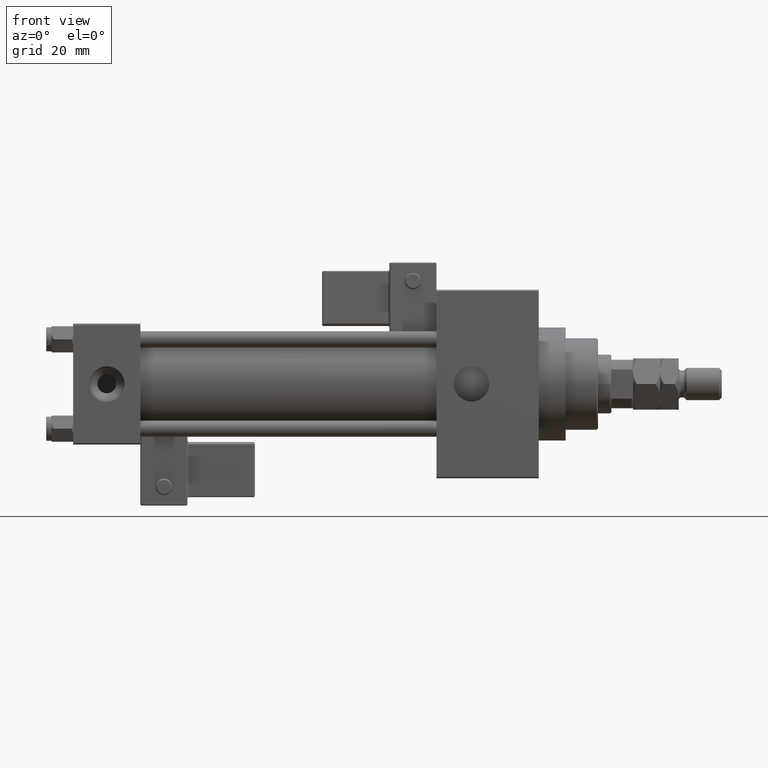
[diagram: clean part render]
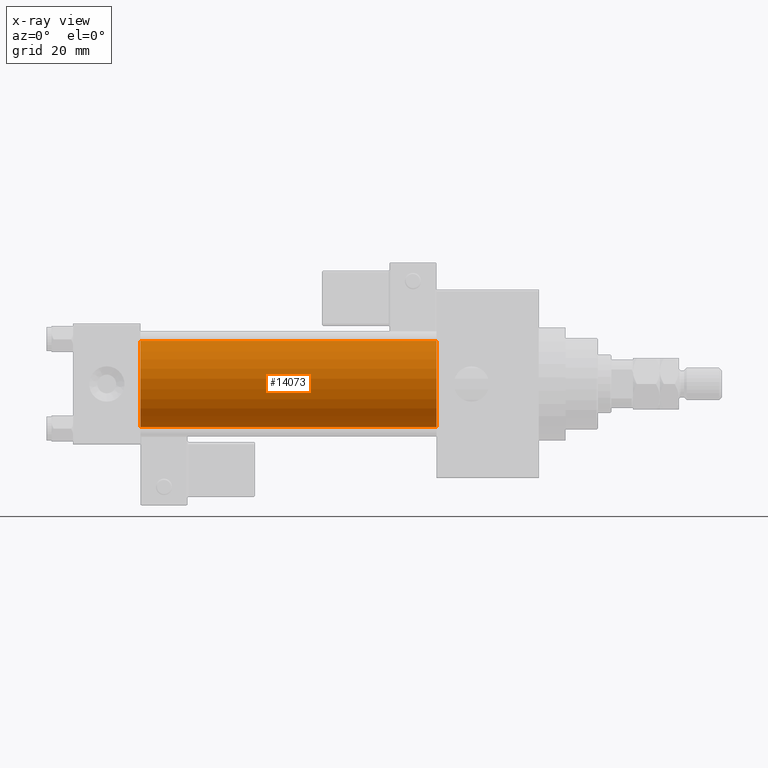
[diagram: x-ray — body ghosted, one internal face saturated and labeled with its STEP entity id]
A machine part, front view, then the same camera in x-ray: the body is ghosted and one INTERNAL B-rep face — a face not visible from any outside direction — is saturated and labeled: STEP entity #14073.
In plain terms, the highlighted cylindrical surface (partial cylindrical patch) has radius 16 mm, axis along (-1, -0, -0).
Its self-contained STEP definition (entity closure, byte-faithful):
#1417 = DIRECTION ( 'NONE',  ( 1.000000000000000000, 0.000000000000000000, 0.000000000000000000 ) ) ;
#1690 = CARTESIAN_POINT ( 'NONE',  ( 135.0000000000000000, -2.602085213965210642E-15, 0.000000000000000000 ) ) ;
#3012 = DIRECTION ( 'NONE',  ( 0.000000000000000000, 0.000000000000000000, 1.000000000000000000 ) ) ;
#3289 = DIRECTION ( 'NONE',  ( -1.000000000000000000, -0.000000000000000000, -0.000000000000000000 ) ) ;
#3478 = VERTEX_POINT ( 'NONE', #30323 ) ;
#4002 = EDGE_LOOP ( 'NONE', ( #31457, #5190, #52529, #21049 ) ) ;
#4261 = EDGE_CURVE ( 'NONE', #44328, #3478, #28925, .T. ) ;
#5190 = ORIENTED_EDGE ( 'NONE', *, *, #19760, .T. ) ;
#6471 = CIRCLE ( 'NONE', #11613, 16.00000000000000000 ) ;
#11319 = CARTESIAN_POINT ( 'NONE',  ( 135.0000000000000000, -2.602085213965210642E-15, 0.000000000000000000 ) ) ;
#11522 = CARTESIAN_POINT ( 'NONE',  ( 135.0000000000000000, -6.426503353294456087E-16, -16.00000000000000000 ) ) ;
#11613 = AXIS2_PLACEMENT_3D ( 'NONE', #46718, #18325, #23417 ) ;
#14073 = ADVANCED_FACE ( 'NONE', ( #19598 ), #31650, .F. ) ;
#15522 = DIRECTION ( 'NONE',  ( -1.000000000000000000, -0.000000000000000000, -0.000000000000000000 ) ) ;
#18325 = DIRECTION ( 'NONE',  ( 1.000000000000000000, 0.000000000000000000, 0.000000000000000000 ) ) ;
#19512 = AXIS2_PLACEMENT_3D ( 'NONE', #1690, #1417, #30331 ) ;
#19598 = FACE_OUTER_BOUND ( 'NONE', #4002, .T. ) ;
#19760 = EDGE_CURVE ( 'NONE', #3478, #51659, #19792, .T. ) ;
#19792 = LINE ( 'NONE', #11522, #25268 ) ;
#21049 = ORIENTED_EDGE ( 'NONE', *, *, #25130, .F. ) ;
#21655 = CARTESIAN_POINT ( 'NONE',  ( 135.0000000000000000, -2.602085213965210642E-15, 16.00000000000000000 ) ) ;
#23417 = DIRECTION ( 'NONE',  ( 0.000000000000000000, 0.000000000000000000, -1.000000000000000000 ) ) ;
#25130 = EDGE_CURVE ( 'NONE', #44328, #40762, #42538, .T. ) ;
#25268 = VECTOR ( 'NONE', #15522, 1000.000000000000000 ) ;
#25873 = CARTESIAN_POINT ( 'NONE',  ( 25.00000000000000000, -2.602085213965210642E-15, 16.00000000000000000 ) ) ;
#27612 = AXIS2_PLACEMENT_3D ( 'NONE', #11319, #3289, #3012 ) ;
#28925 = CIRCLE ( 'NONE', #19512, 16.00000000000000000 ) ;
#30323 = CARTESIAN_POINT ( 'NONE',  ( 135.0000000000000000, -6.426503353294456087E-16, -16.00000000000000000 ) ) ;
#30331 = DIRECTION ( 'NONE',  ( 0.000000000000000000, 0.000000000000000000, -1.000000000000000000 ) ) ;
#31457 = ORIENTED_EDGE ( 'NONE', *, *, #4261, .T. ) ;
#31650 = CYLINDRICAL_SURFACE ( 'NONE', #27612, 16.00000000000000000 ) ;
#34230 = DIRECTION ( 'NONE',  ( -1.000000000000000000, -0.000000000000000000, -0.000000000000000000 ) ) ;
#40762 = VERTEX_POINT ( 'NONE', #25873 ) ;
#41436 = EDGE_CURVE ( 'NONE', #40762, #51659, #6471, .T. ) ;
#42538 = LINE ( 'NONE', #21655, #45901 ) ;
#44328 = VERTEX_POINT ( 'NONE', #50321 ) ;
#45901 = VECTOR ( 'NONE', #34230, 1000.000000000000000 ) ;
#46718 = CARTESIAN_POINT ( 'NONE',  ( 25.00000000000000000, -2.602085213965210642E-15, 0.000000000000000000 ) ) ;
#50321 = CARTESIAN_POINT ( 'NONE',  ( 135.0000000000000000, -2.602085213965210642E-15, 16.00000000000000000 ) ) ;
#51279 = CARTESIAN_POINT ( 'NONE',  ( 25.00000000000000000, -6.426503353294456087E-16, -16.00000000000000000 ) ) ;
#51659 = VERTEX_POINT ( 'NONE', #51279 ) ;
#52529 = ORIENTED_EDGE ( 'NONE', *, *, #41436, .F. ) ;